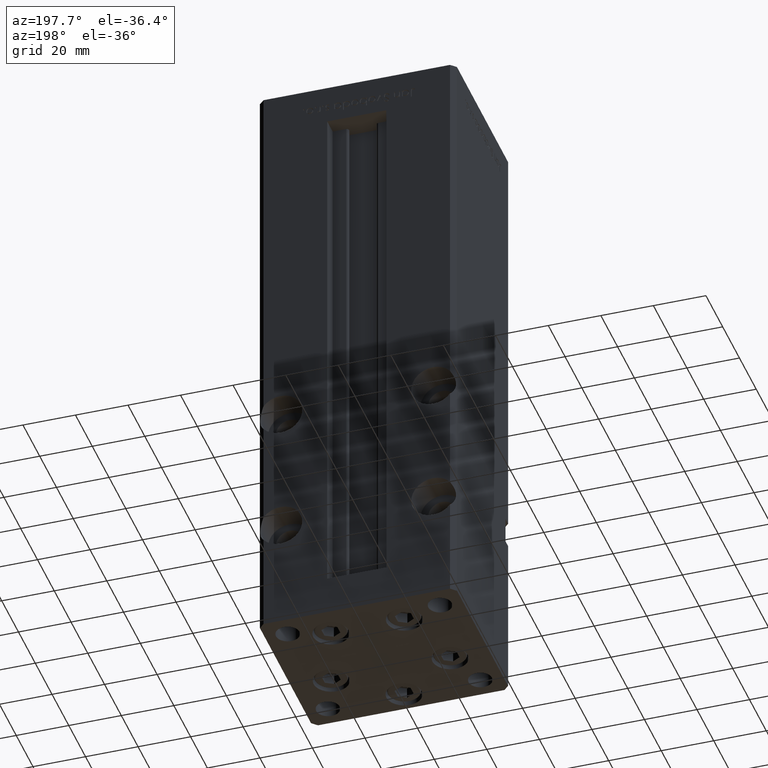
[diagram: clean part render]
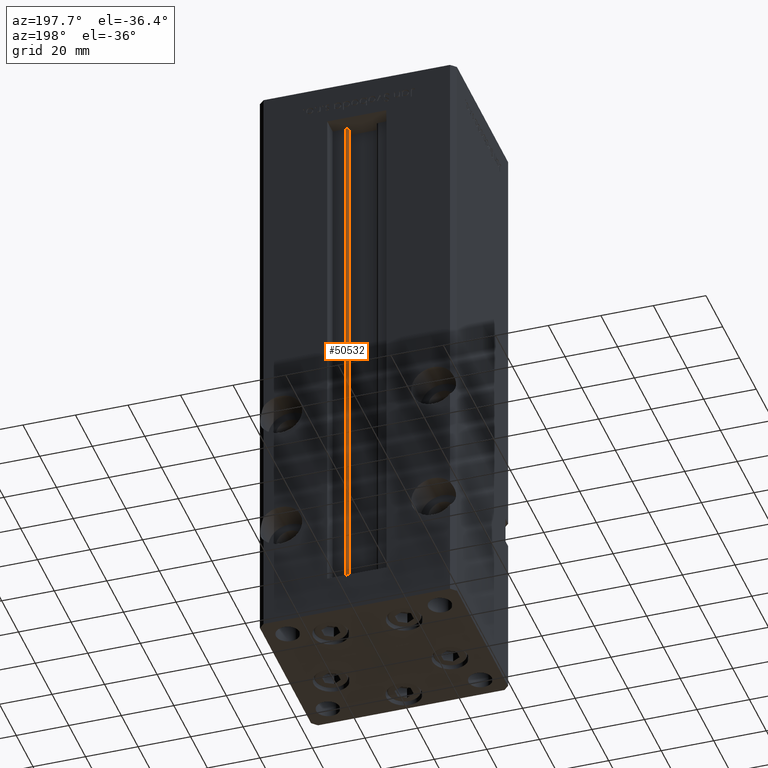
[diagram: same view with one face highlighted and labeled with its STEP entity id]
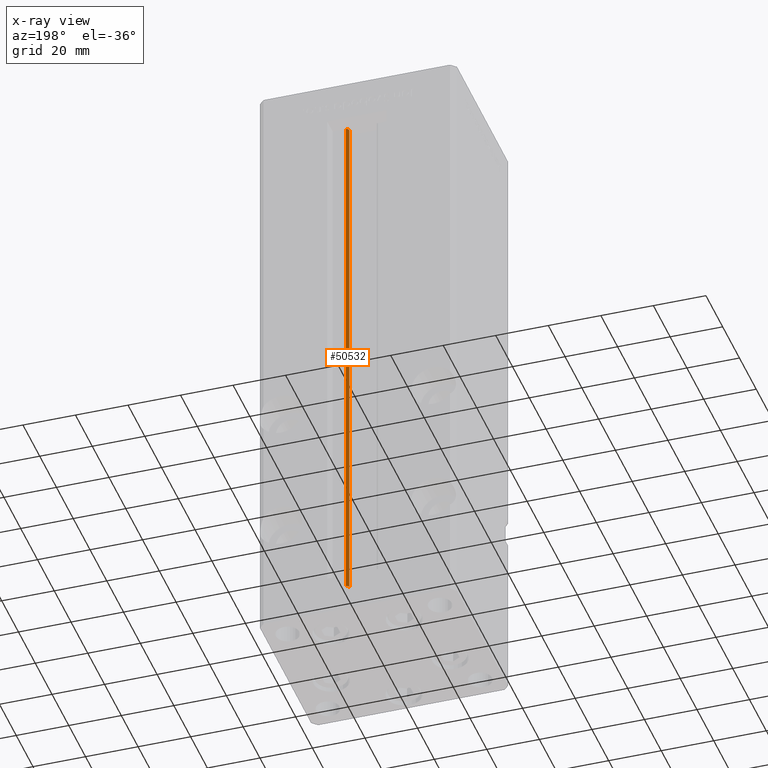
[diagram: x-ray of the same camera — body ghosted, the highlighted face saturated]
A machine part, auxiliary view. The second image highlights one B-rep face of the part: STEP entity #50532.
The next image is the same camera in x-ray: the body ghosted, the highlighted face saturated — about 0% of this face is hidden behind the body in this view.
In plain terms, the highlighted cylindrical surface (edge-blend (fillet) strip) has radius 0.9333 mm, axis along (0, 0, 1).
Its self-contained STEP definition (entity closure, byte-faithful):
#2999 = ORIENTED_EDGE ( 'NONE', *, *, #13542, .T. ) ;
#4326 = EDGE_CURVE ( 'NONE', #15296, #27441, #12144, .T. ) ;
#4410 = EDGE_LOOP ( 'NONE', ( #46187, #30890, #2999, #48906 ) ) ;
#6262 = DIRECTION ( 'NONE',  ( -0.000000000000000000, -0.000000000000000000, -1.000000000000000000 ) ) ;
#8187 = CARTESIAN_POINT ( 'NONE',  ( 6.183333333333980164, 25.06666666666599852, 206.0000000000000000 ) ) ;
#9374 = EDGE_CURVE ( 'NONE', #10644, #11922, #18197, .T. ) ;
#10033 = DIRECTION ( 'NONE',  ( 1.000000000000000000, 0.000000000000000000, 0.000000000000000000 ) ) ;
#10644 = VERTEX_POINT ( 'NONE', #52871 ) ;
#11922 = VERTEX_POINT ( 'NONE', #52797 ) ;
#12144 = CIRCLE ( 'NONE', #21593, 0.9333333333340008142 ) ;
#13542 = EDGE_CURVE ( 'NONE', #10644, #15296, #20864, .T. ) ;
#15296 = VERTEX_POINT ( 'NONE', #38704 ) ;
#18197 = CIRCLE ( 'NONE', #47390, 0.9333333333340008142 ) ;
#18587 = CARTESIAN_POINT ( 'NONE',  ( 6.183333333333980164, 26.00000000000000000, 206.0000000000000000 ) ) ;
#20864 = LINE ( 'NONE', #29989, #43078 ) ;
#21156 = CARTESIAN_POINT ( 'NONE',  ( 6.183333333333980164, 26.00000000000000000, 0.000000000000000000 ) ) ;
#21593 = AXIS2_PLACEMENT_3D ( 'NONE', #8187, #36728, #29176 ) ;
#24936 = LINE ( 'NONE', #21156, #46836 ) ;
#25199 = DIRECTION ( 'NONE',  ( -0.000000000000000000, -0.000000000000000000, 1.000000000000000000 ) ) ;
#25259 = FACE_OUTER_BOUND ( 'NONE', #4410, .T. ) ;
#27441 = VERTEX_POINT ( 'NONE', #18587 ) ;
#27838 = EDGE_CURVE ( 'NONE', #11922, #27441, #24936, .T. ) ;
#28239 = DIRECTION ( 'NONE',  ( 1.000000000000000000, 0.000000000000000000, 0.000000000000000000 ) ) ;
#29176 = DIRECTION ( 'NONE',  ( 1.000000000000000000, 0.000000000000000000, 0.000000000000000000 ) ) ;
#29731 = DIRECTION ( 'NONE',  ( -0.000000000000000000, -0.000000000000000000, 1.000000000000000000 ) ) ;
#29989 = CARTESIAN_POINT ( 'NONE',  ( 5.375042956467928512, 24.59999999999899245, 0.000000000000000000 ) ) ;
#30890 = ORIENTED_EDGE ( 'NONE', *, *, #9374, .F. ) ;
#32541 = CYLINDRICAL_SURFACE ( 'NONE', #46913, 0.9333333333340008142 ) ;
#32801 = DIRECTION ( 'NONE',  ( -0.000000000000000000, -0.000000000000000000, 1.000000000000000000 ) ) ;
#36728 = DIRECTION ( 'NONE',  ( 0.000000000000000000, 0.000000000000000000, -1.000000000000000000 ) ) ;
#38704 = CARTESIAN_POINT ( 'NONE',  ( 5.375042956467926736, 24.59999999999899245, 206.0000000000000000 ) ) ;
#43078 = VECTOR ( 'NONE', #29731, 1000.000000000000000 ) ;
#45162 = CARTESIAN_POINT ( 'NONE',  ( 6.183333333333980164, 25.06666666666599852, 0.000000000000000000 ) ) ;
#46187 = ORIENTED_EDGE ( 'NONE', *, *, #27838, .F. ) ;
#46836 = VECTOR ( 'NONE', #25199, 1000.000000000000000 ) ;
#46886 = CARTESIAN_POINT ( 'NONE',  ( 6.183333333333980164, 25.06666666666599852, 0.000000000000000000 ) ) ;
#46913 = AXIS2_PLACEMENT_3D ( 'NONE', #45162, #32801, #28239 ) ;
#47390 = AXIS2_PLACEMENT_3D ( 'NONE', #46886, #6262, #10033 ) ;
#48906 = ORIENTED_EDGE ( 'NONE', *, *, #4326, .T. ) ;
#50532 = ADVANCED_FACE ( 'NONE', ( #25259 ), #32541, .T. ) ;
#52797 = CARTESIAN_POINT ( 'NONE',  ( 6.183333333333980164, 26.00000000000000000, 0.000000000000000000 ) ) ;
#52871 = CARTESIAN_POINT ( 'NONE',  ( 5.375042956467928512, 24.59999999999899245, 0.000000000000000000 ) ) ;